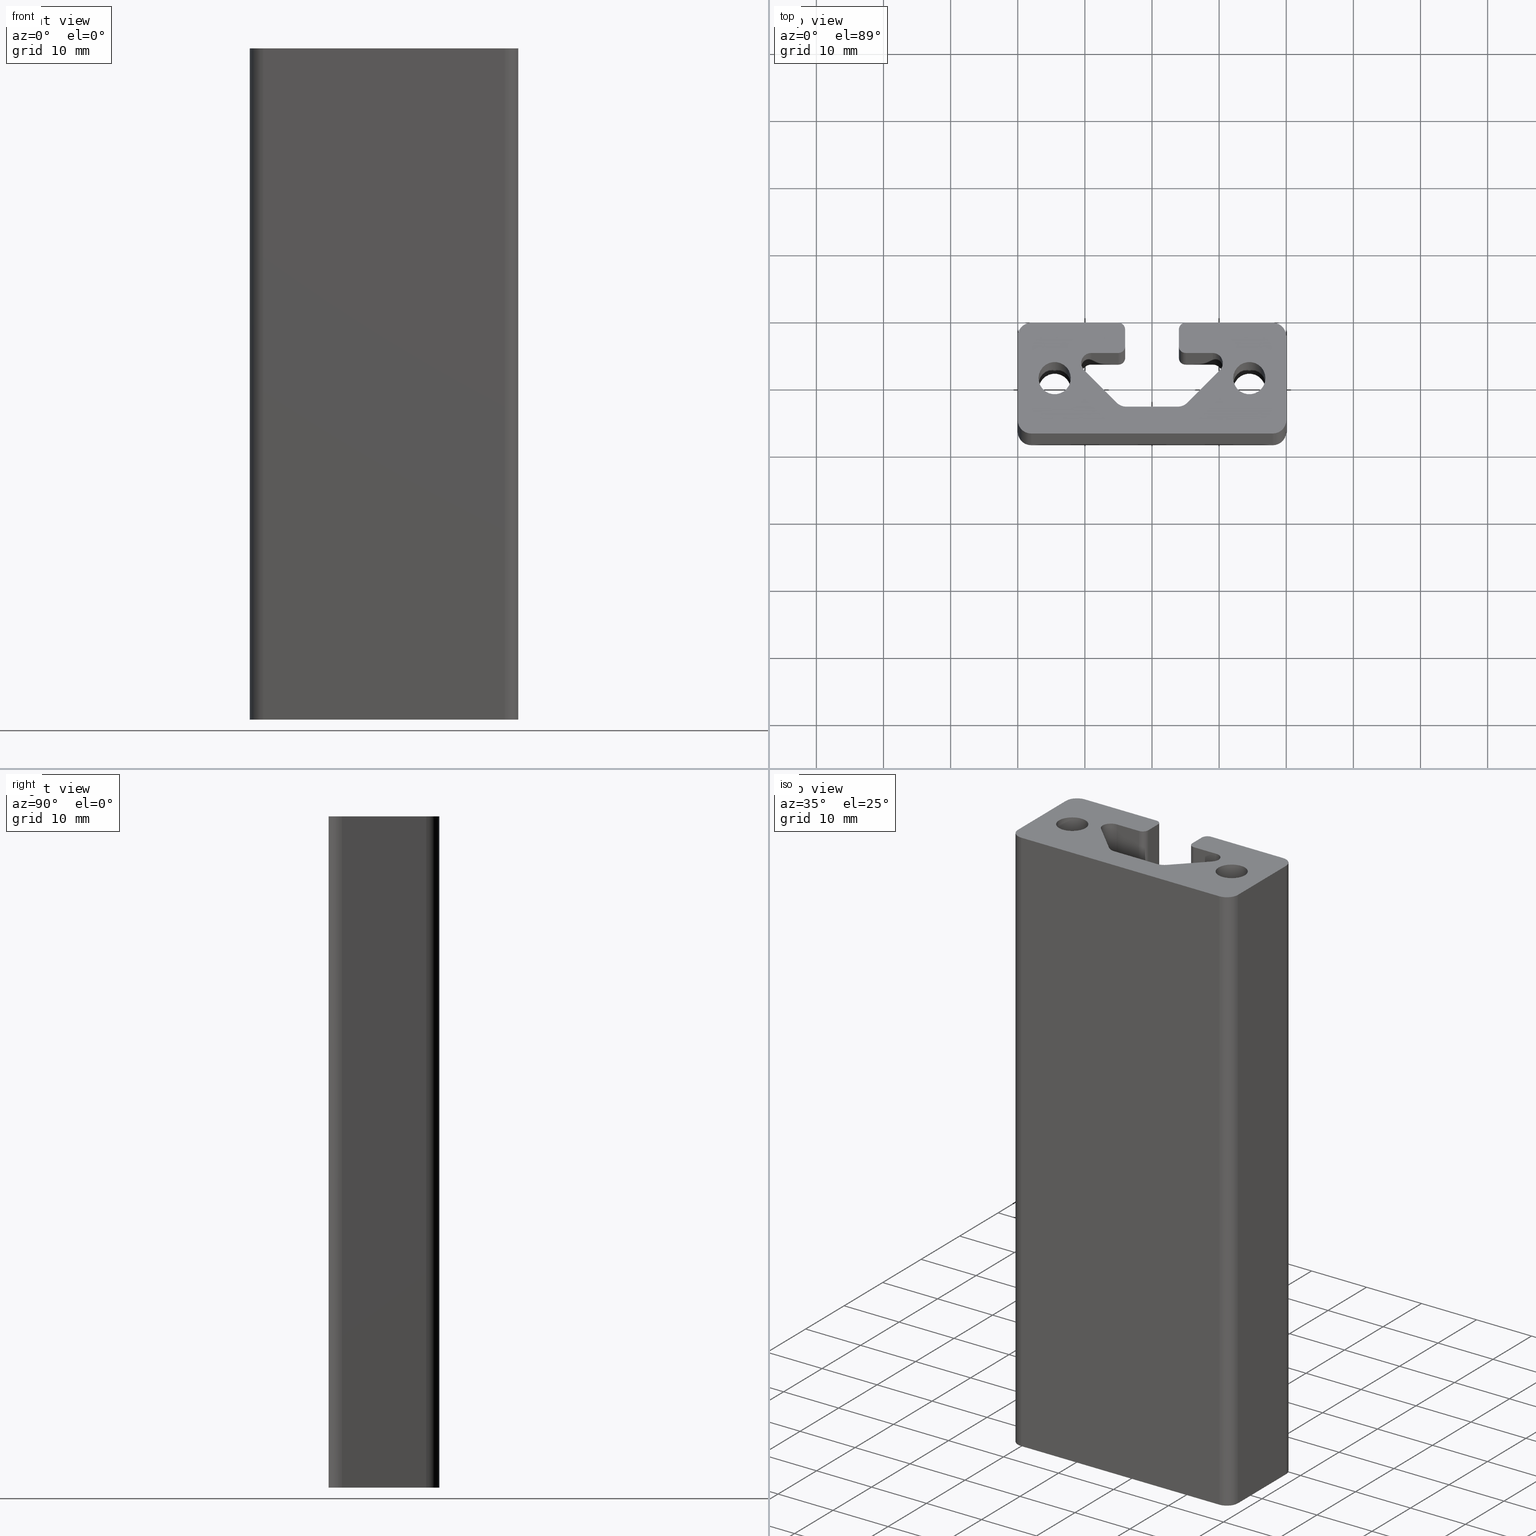
[diagram: canonical four-view strip — front | top / right | iso, engineering-drawing reading convention]
A machine part, canonical four-view strip (front | top / right | iso — engineering-drawing reading convention). The complete STEP part file that produces these views, byte-faithful:
ISO-10303-21;
HEADER;
/* Generated by software containing ST-Developer
 * from STEP Tools, Inc. (www.steptools.com) 
 */

FILE_DESCRIPTION(
/* description */ (''),
/* implementation_level */ '2;1');

FILE_NAME(
/* name */ 
'Q:\\Catalogo\\1_Profili Dierre\\Per Download Web\\Serie 40\\BPRDD0000
087.stp',
/* time_stamp */ '2017-07-12T11:26:34+02:00',
/* author */ ('fzagni'),
/* organization */ (''),
/* preprocessor_version */ 'ST-DEVELOPER v16.1',
/* originating_system */ 'Autodesk Inventor 2016',
/* authorisation */ '');

FILE_SCHEMA (('AUTOMOTIVE_DESIGN { 1 0 10303 214 3 1 1 }'));
ENDSEC;

DATA;
#10=MECHANICAL_DESIGN_GEOMETRIC_PRESENTATION_REPRESENTATION('',(#13),#923);
#11=SHAPE_REPRESENTATION_RELATIONSHIP('SRR','None',#932,#12);
#12=ADVANCED_BREP_SHAPE_REPRESENTATION('',(#14),#922);
#13=STYLED_ITEM('',(#941),#14);
#14=MANIFOLD_SOLID_BREP('Solido1',#543);
#15=FACE_BOUND('',#104,.T.);
#16=FACE_BOUND('',#106,.T.);
#17=FACE_BOUND('',#120,.T.);
#18=FACE_BOUND('',#121,.T.);
#19=FACE_BOUND('',#123,.T.);
#20=FACE_BOUND('',#124,.T.);
#21=CIRCLE('',#547,1.000000004051);
#22=CIRCLE('',#548,1.000000004051);
#23=CIRCLE('',#551,1.0000000020255);
#24=CIRCLE('',#552,1.0000000020255);
#25=CIRCLE('',#555,1.50000072214692);
#26=CIRCLE('',#556,1.50000072214692);
#27=CIRCLE('',#559,2.0000031924015);
#28=CIRCLE('',#560,2.0000031924015);
#29=CIRCLE('',#563,2.0000031924015);
#30=CIRCLE('',#564,2.0000031924015);
#31=CIRCLE('',#567,1.50000072214692);
#32=CIRCLE('',#568,1.50000072214692);
#33=CIRCLE('',#570,2.4);
#34=CIRCLE('',#571,2.4);
#35=CIRCLE('',#573,2.4);
#36=CIRCLE('',#574,2.4);
#37=CIRCLE('',#577,1.000000004051);
#38=CIRCLE('',#578,1.000000004051);
#39=CIRCLE('',#581,1.0000000020255);
#40=CIRCLE('',#582,1.0000000020255);
#41=CIRCLE('',#585,2.00000000000006);
#42=CIRCLE('',#586,2.00000000000006);
#43=CIRCLE('',#589,2.);
#44=CIRCLE('',#590,2.);
#45=CIRCLE('',#593,2.00000000000001);
#46=CIRCLE('',#594,2.00000000000001);
#47=CIRCLE('',#597,1.99999999999992);
#48=CIRCLE('',#598,1.99999999999992);
#49=CYLINDRICAL_SURFACE('',#546,1.000000004051);
#50=CYLINDRICAL_SURFACE('',#550,1.0000000020255);
#51=CYLINDRICAL_SURFACE('',#554,1.50000072214692);
#52=CYLINDRICAL_SURFACE('',#558,2.0000031924015);
#53=CYLINDRICAL_SURFACE('',#562,2.0000031924015);
#54=CYLINDRICAL_SURFACE('',#566,1.50000072214692);
#55=CYLINDRICAL_SURFACE('',#569,2.4);
#56=CYLINDRICAL_SURFACE('',#572,2.4);
#57=CYLINDRICAL_SURFACE('',#576,1.000000004051);
#58=CYLINDRICAL_SURFACE('',#580,1.0000000020255);
#59=CYLINDRICAL_SURFACE('',#584,2.00000000000006);
#60=CYLINDRICAL_SURFACE('',#588,2.);
#61=CYLINDRICAL_SURFACE('',#592,2.00000000000001);
#62=CYLINDRICAL_SURFACE('',#596,1.99999999999992);
#63=FACE_OUTER_BOUND('',#91,.T.);
#64=FACE_OUTER_BOUND('',#92,.T.);
#65=FACE_OUTER_BOUND('',#93,.T.);
#66=FACE_OUTER_BOUND('',#94,.T.);
#67=FACE_OUTER_BOUND('',#95,.T.);
#68=FACE_OUTER_BOUND('',#96,.T.);
#69=FACE_OUTER_BOUND('',#97,.T.);
#70=FACE_OUTER_BOUND('',#98,.T.);
#71=FACE_OUTER_BOUND('',#99,.T.);
#72=FACE_OUTER_BOUND('',#100,.T.);
#73=FACE_OUTER_BOUND('',#101,.T.);
#74=FACE_OUTER_BOUND('',#102,.T.);
#75=FACE_OUTER_BOUND('',#103,.T.);
#76=FACE_OUTER_BOUND('',#105,.T.);
#77=FACE_OUTER_BOUND('',#107,.T.);
#78=FACE_OUTER_BOUND('',#108,.T.);
#79=FACE_OUTER_BOUND('',#109,.T.);
#80=FACE_OUTER_BOUND('',#110,.T.);
#81=FACE_OUTER_BOUND('',#111,.T.);
#82=FACE_OUTER_BOUND('',#112,.T.);
#83=FACE_OUTER_BOUND('',#113,.T.);
#84=FACE_OUTER_BOUND('',#114,.T.);
#85=FACE_OUTER_BOUND('',#115,.T.);
#86=FACE_OUTER_BOUND('',#116,.T.);
#87=FACE_OUTER_BOUND('',#117,.T.);
#88=FACE_OUTER_BOUND('',#118,.T.);
#89=FACE_OUTER_BOUND('',#119,.T.);
#90=FACE_OUTER_BOUND('',#122,.T.);
#91=EDGE_LOOP('',(#349,#350,#351,#352));
#92=EDGE_LOOP('',(#353,#354,#355,#356));
#93=EDGE_LOOP('',(#357,#358,#359,#360));
#94=EDGE_LOOP('',(#361,#362,#363,#364));
#95=EDGE_LOOP('',(#365,#366,#367,#368));
#96=EDGE_LOOP('',(#369,#370,#371,#372));
#97=EDGE_LOOP('',(#373,#374,#375,#376));
#98=EDGE_LOOP('',(#377,#378,#379,#380));
#99=EDGE_LOOP('',(#381,#382,#383,#384));
#100=EDGE_LOOP('',(#385,#386,#387,#388));
#101=EDGE_LOOP('',(#389,#390,#391,#392));
#102=EDGE_LOOP('',(#393,#394,#395,#396));
#103=EDGE_LOOP('',(#397));
#104=EDGE_LOOP('',(#398));
#105=EDGE_LOOP('',(#399));
#106=EDGE_LOOP('',(#400));
#107=EDGE_LOOP('',(#401,#402,#403,#404));
#108=EDGE_LOOP('',(#405,#406,#407,#408));
#109=EDGE_LOOP('',(#409,#410,#411,#412));
#110=EDGE_LOOP('',(#413,#414,#415,#416));
#111=EDGE_LOOP('',(#417,#418,#419,#420));
#112=EDGE_LOOP('',(#421,#422,#423,#424));
#113=EDGE_LOOP('',(#425,#426,#427,#428));
#114=EDGE_LOOP('',(#429,#430,#431,#432));
#115=EDGE_LOOP('',(#433,#434,#435,#436));
#116=EDGE_LOOP('',(#437,#438,#439,#440));
#117=EDGE_LOOP('',(#441,#442,#443,#444));
#118=EDGE_LOOP('',(#445,#446,#447,#448));
#119=EDGE_LOOP('',(#449,#450,#451,#452,#453,#454,#455,#456,#457,#458,#459,
#460,#461,#462,#463,#464,#465,#466,#467,#468,#469,#470,#471,#472));
#120=EDGE_LOOP('',(#473));
#121=EDGE_LOOP('',(#474));
#122=EDGE_LOOP('',(#475,#476,#477,#478,#479,#480,#481,#482,#483,#484,#485,
#486,#487,#488,#489,#490,#491,#492,#493,#494,#495,#496,#497,#498));
#123=EDGE_LOOP('',(#499));
#124=EDGE_LOOP('',(#500));
#125=LINE('',#767,#173);
#126=LINE('',#769,#174);
#127=LINE('',#771,#175);
#128=LINE('',#772,#176);
#129=LINE('',#777,#177);
#130=LINE('',#781,#178);
#131=LINE('',#783,#179);
#132=LINE('',#784,#180);
#133=LINE('',#789,#181);
#134=LINE('',#793,#182);
#135=LINE('',#795,#183);
#136=LINE('',#796,#184);
#137=LINE('',#801,#185);
#138=LINE('',#805,#186);
#139=LINE('',#807,#187);
#140=LINE('',#808,#188);
#141=LINE('',#813,#189);
#142=LINE('',#817,#190);
#143=LINE('',#819,#191);
#144=LINE('',#820,#192);
#145=LINE('',#825,#193);
#146=LINE('',#829,#194);
#147=LINE('',#831,#195);
#148=LINE('',#832,#196);
#149=LINE('',#837,#197);
#150=LINE('',#851,#198);
#151=LINE('',#853,#199);
#152=LINE('',#854,#200);
#153=LINE('',#859,#201);
#154=LINE('',#863,#202);
#155=LINE('',#865,#203);
#156=LINE('',#866,#204);
#157=LINE('',#871,#205);
#158=LINE('',#875,#206);
#159=LINE('',#877,#207);
#160=LINE('',#878,#208);
#161=LINE('',#883,#209);
#162=LINE('',#887,#210);
#163=LINE('',#889,#211);
#164=LINE('',#890,#212);
#165=LINE('',#895,#213);
#166=LINE('',#899,#214);
#167=LINE('',#901,#215);
#168=LINE('',#902,#216);
#169=LINE('',#907,#217);
#170=LINE('',#911,#218);
#171=LINE('',#913,#219);
#172=LINE('',#914,#220);
#173=VECTOR('',#605,12.9999999956374);
#174=VECTOR('',#606,100.);
#175=VECTOR('',#607,12.9999999956374);
#176=VECTOR('',#608,100.);
#177=VECTOR('',#613,100.);
#178=VECTOR('',#618,2.499999995949);
#179=VECTOR('',#619,100.);
#180=VECTOR('',#620,2.499999995949);
#181=VECTOR('',#625,100.);
#182=VECTOR('',#630,4.05025491302354);
#183=VECTOR('',#631,100.);
#184=VECTOR('',#632,4.05025491302354);
#185=VECTOR('',#637,100.);
#186=VECTOR('',#642,6.86395720631049);
#187=VECTOR('',#643,100.);
#188=VECTOR('',#644,6.86395720631049);
#189=VECTOR('',#649,100.);
#190=VECTOR('',#654,7.68629110583554);
#191=VECTOR('',#655,100.);
#192=VECTOR('',#656,7.68629110583554);
#193=VECTOR('',#661,100.);
#194=VECTOR('',#666,6.86395796492603);
#195=VECTOR('',#667,100.);
#196=VECTOR('',#668,6.86395796492603);
#197=VECTOR('',#673,100.);
#198=VECTOR('',#690,4.05024790897246);
#199=VECTOR('',#691,100.);
#200=VECTOR('',#692,4.05024790897246);
#201=VECTOR('',#697,100.);
#202=VECTOR('',#702,2.499999995949);
#203=VECTOR('',#703,100.);
#204=VECTOR('',#704,2.499999995949);
#205=VECTOR('',#709,100.);
#206=VECTOR('',#714,12.999999995949);
#207=VECTOR('',#715,100.);
#208=VECTOR('',#716,12.999999995949);
#209=VECTOR('',#721,100.);
#210=VECTOR('',#726,12.5000000000004);
#211=VECTOR('',#727,100.);
#212=VECTOR('',#728,12.5000000000004);
#213=VECTOR('',#733,100.);
#214=VECTOR('',#738,36.);
#215=VECTOR('',#739,100.);
#216=VECTOR('',#740,36.);
#217=VECTOR('',#745,100.);
#218=VECTOR('',#750,12.5000000000004);
#219=VECTOR('',#751,100.);
#220=VECTOR('',#752,12.5000000000004);
#221=VERTEX_POINT('',#765);
#222=VERTEX_POINT('',#766);
#223=VERTEX_POINT('',#768);
#224=VERTEX_POINT('',#770);
#225=VERTEX_POINT('',#774);
#226=VERTEX_POINT('',#776);
#227=VERTEX_POINT('',#780);
#228=VERTEX_POINT('',#782);
#229=VERTEX_POINT('',#786);
#230=VERTEX_POINT('',#788);
#231=VERTEX_POINT('',#792);
#232=VERTEX_POINT('',#794);
#233=VERTEX_POINT('',#798);
#234=VERTEX_POINT('',#800);
#235=VERTEX_POINT('',#804);
#236=VERTEX_POINT('',#806);
#237=VERTEX_POINT('',#810);
#238=VERTEX_POINT('',#812);
#239=VERTEX_POINT('',#816);
#240=VERTEX_POINT('',#818);
#241=VERTEX_POINT('',#822);
#242=VERTEX_POINT('',#824);
#243=VERTEX_POINT('',#828);
#244=VERTEX_POINT('',#830);
#245=VERTEX_POINT('',#834);
#246=VERTEX_POINT('',#836);
#247=VERTEX_POINT('',#840);
#248=VERTEX_POINT('',#842);
#249=VERTEX_POINT('',#845);
#250=VERTEX_POINT('',#847);
#251=VERTEX_POINT('',#850);
#252=VERTEX_POINT('',#852);
#253=VERTEX_POINT('',#856);
#254=VERTEX_POINT('',#858);
#255=VERTEX_POINT('',#862);
#256=VERTEX_POINT('',#864);
#257=VERTEX_POINT('',#868);
#258=VERTEX_POINT('',#870);
#259=VERTEX_POINT('',#874);
#260=VERTEX_POINT('',#876);
#261=VERTEX_POINT('',#880);
#262=VERTEX_POINT('',#882);
#263=VERTEX_POINT('',#886);
#264=VERTEX_POINT('',#888);
#265=VERTEX_POINT('',#892);
#266=VERTEX_POINT('',#894);
#267=VERTEX_POINT('',#898);
#268=VERTEX_POINT('',#900);
#269=VERTEX_POINT('',#904);
#270=VERTEX_POINT('',#906);
#271=VERTEX_POINT('',#910);
#272=VERTEX_POINT('',#912);
#273=EDGE_CURVE('',#221,#222,#125,.T.);
#274=EDGE_CURVE('',#223,#222,#126,.T.);
#275=EDGE_CURVE('',#224,#223,#127,.T.);
#276=EDGE_CURVE('',#224,#221,#128,.T.);
#277=EDGE_CURVE('',#222,#225,#21,.T.);
#278=EDGE_CURVE('',#226,#225,#129,.T.);
#279=EDGE_CURVE('',#223,#226,#22,.T.);
#280=EDGE_CURVE('',#225,#227,#130,.T.);
#281=EDGE_CURVE('',#228,#227,#131,.T.);
#282=EDGE_CURVE('',#226,#228,#132,.T.);
#283=EDGE_CURVE('',#227,#229,#23,.T.);
#284=EDGE_CURVE('',#230,#229,#133,.T.);
#285=EDGE_CURVE('',#228,#230,#24,.T.);
#286=EDGE_CURVE('',#229,#231,#134,.T.);
#287=EDGE_CURVE('',#232,#231,#135,.T.);
#288=EDGE_CURVE('',#230,#232,#136,.T.);
#289=EDGE_CURVE('',#231,#233,#25,.T.);
#290=EDGE_CURVE('',#234,#233,#137,.T.);
#291=EDGE_CURVE('',#232,#234,#26,.T.);
#292=EDGE_CURVE('',#233,#235,#138,.T.);
#293=EDGE_CURVE('',#236,#235,#139,.T.);
#294=EDGE_CURVE('',#234,#236,#140,.T.);
#295=EDGE_CURVE('',#235,#237,#27,.T.);
#296=EDGE_CURVE('',#238,#237,#141,.T.);
#297=EDGE_CURVE('',#236,#238,#28,.T.);
#298=EDGE_CURVE('',#237,#239,#142,.T.);
#299=EDGE_CURVE('',#240,#239,#143,.T.);
#300=EDGE_CURVE('',#238,#240,#144,.T.);
#301=EDGE_CURVE('',#239,#241,#29,.T.);
#302=EDGE_CURVE('',#242,#241,#145,.T.);
#303=EDGE_CURVE('',#240,#242,#30,.T.);
#304=EDGE_CURVE('',#241,#243,#146,.T.);
#305=EDGE_CURVE('',#244,#243,#147,.T.);
#306=EDGE_CURVE('',#242,#244,#148,.T.);
#307=EDGE_CURVE('',#243,#245,#31,.T.);
#308=EDGE_CURVE('',#246,#245,#149,.T.);
#309=EDGE_CURVE('',#244,#246,#32,.T.);
#310=EDGE_CURVE('',#247,#247,#33,.T.);
#311=EDGE_CURVE('',#248,#248,#34,.T.);
#312=EDGE_CURVE('',#249,#249,#35,.T.);
#313=EDGE_CURVE('',#250,#250,#36,.T.);
#314=EDGE_CURVE('',#245,#251,#150,.T.);
#315=EDGE_CURVE('',#252,#251,#151,.T.);
#316=EDGE_CURVE('',#246,#252,#152,.T.);
#317=EDGE_CURVE('',#251,#253,#37,.T.);
#318=EDGE_CURVE('',#254,#253,#153,.T.);
#319=EDGE_CURVE('',#252,#254,#38,.T.);
#320=EDGE_CURVE('',#253,#255,#154,.T.);
#321=EDGE_CURVE('',#256,#255,#155,.T.);
#322=EDGE_CURVE('',#254,#256,#156,.T.);
#323=EDGE_CURVE('',#255,#257,#39,.T.);
#324=EDGE_CURVE('',#258,#257,#157,.T.);
#325=EDGE_CURVE('',#256,#258,#40,.T.);
#326=EDGE_CURVE('',#257,#259,#158,.T.);
#327=EDGE_CURVE('',#260,#259,#159,.T.);
#328=EDGE_CURVE('',#258,#260,#160,.T.);
#329=EDGE_CURVE('',#259,#261,#41,.T.);
#330=EDGE_CURVE('',#262,#261,#161,.T.);
#331=EDGE_CURVE('',#260,#262,#42,.T.);
#332=EDGE_CURVE('',#261,#263,#162,.T.);
#333=EDGE_CURVE('',#264,#263,#163,.T.);
#334=EDGE_CURVE('',#262,#264,#164,.T.);
#335=EDGE_CURVE('',#263,#265,#43,.T.);
#336=EDGE_CURVE('',#266,#265,#165,.T.);
#337=EDGE_CURVE('',#264,#266,#44,.T.);
#338=EDGE_CURVE('',#265,#267,#166,.T.);
#339=EDGE_CURVE('',#268,#267,#167,.T.);
#340=EDGE_CURVE('',#266,#268,#168,.T.);
#341=EDGE_CURVE('',#267,#269,#45,.T.);
#342=EDGE_CURVE('',#270,#269,#169,.T.);
#343=EDGE_CURVE('',#268,#270,#46,.T.);
#344=EDGE_CURVE('',#269,#271,#170,.T.);
#345=EDGE_CURVE('',#272,#271,#171,.T.);
#346=EDGE_CURVE('',#270,#272,#172,.T.);
#347=EDGE_CURVE('',#271,#221,#47,.T.);
#348=EDGE_CURVE('',#272,#224,#48,.T.);
#349=ORIENTED_EDGE('',*,*,#273,.T.);
#350=ORIENTED_EDGE('',*,*,#274,.F.);
#351=ORIENTED_EDGE('',*,*,#275,.F.);
#352=ORIENTED_EDGE('',*,*,#276,.T.);
#353=ORIENTED_EDGE('',*,*,#277,.T.);
#354=ORIENTED_EDGE('',*,*,#278,.F.);
#355=ORIENTED_EDGE('',*,*,#279,.F.);
#356=ORIENTED_EDGE('',*,*,#274,.T.);
#357=ORIENTED_EDGE('',*,*,#280,.T.);
#358=ORIENTED_EDGE('',*,*,#281,.F.);
#359=ORIENTED_EDGE('',*,*,#282,.F.);
#360=ORIENTED_EDGE('',*,*,#278,.T.);
#361=ORIENTED_EDGE('',*,*,#283,.T.);
#362=ORIENTED_EDGE('',*,*,#284,.F.);
#363=ORIENTED_EDGE('',*,*,#285,.F.);
#364=ORIENTED_EDGE('',*,*,#281,.T.);
#365=ORIENTED_EDGE('',*,*,#286,.T.);
#366=ORIENTED_EDGE('',*,*,#287,.F.);
#367=ORIENTED_EDGE('',*,*,#288,.F.);
#368=ORIENTED_EDGE('',*,*,#284,.T.);
#369=ORIENTED_EDGE('',*,*,#289,.T.);
#370=ORIENTED_EDGE('',*,*,#290,.F.);
#371=ORIENTED_EDGE('',*,*,#291,.F.);
#372=ORIENTED_EDGE('',*,*,#287,.T.);
#373=ORIENTED_EDGE('',*,*,#292,.T.);
#374=ORIENTED_EDGE('',*,*,#293,.F.);
#375=ORIENTED_EDGE('',*,*,#294,.F.);
#376=ORIENTED_EDGE('',*,*,#290,.T.);
#377=ORIENTED_EDGE('',*,*,#295,.T.);
#378=ORIENTED_EDGE('',*,*,#296,.F.);
#379=ORIENTED_EDGE('',*,*,#297,.F.);
#380=ORIENTED_EDGE('',*,*,#293,.T.);
#381=ORIENTED_EDGE('',*,*,#298,.T.);
#382=ORIENTED_EDGE('',*,*,#299,.F.);
#383=ORIENTED_EDGE('',*,*,#300,.F.);
#384=ORIENTED_EDGE('',*,*,#296,.T.);
#385=ORIENTED_EDGE('',*,*,#301,.T.);
#386=ORIENTED_EDGE('',*,*,#302,.F.);
#387=ORIENTED_EDGE('',*,*,#303,.F.);
#388=ORIENTED_EDGE('',*,*,#299,.T.);
#389=ORIENTED_EDGE('',*,*,#304,.T.);
#390=ORIENTED_EDGE('',*,*,#305,.F.);
#391=ORIENTED_EDGE('',*,*,#306,.F.);
#392=ORIENTED_EDGE('',*,*,#302,.T.);
#393=ORIENTED_EDGE('',*,*,#307,.T.);
#394=ORIENTED_EDGE('',*,*,#308,.F.);
#395=ORIENTED_EDGE('',*,*,#309,.F.);
#396=ORIENTED_EDGE('',*,*,#305,.T.);
#397=ORIENTED_EDGE('',*,*,#310,.T.);
#398=ORIENTED_EDGE('',*,*,#311,.F.);
#399=ORIENTED_EDGE('',*,*,#312,.T.);
#400=ORIENTED_EDGE('',*,*,#313,.F.);
#401=ORIENTED_EDGE('',*,*,#314,.T.);
#402=ORIENTED_EDGE('',*,*,#315,.F.);
#403=ORIENTED_EDGE('',*,*,#316,.F.);
#404=ORIENTED_EDGE('',*,*,#308,.T.);
#405=ORIENTED_EDGE('',*,*,#317,.T.);
#406=ORIENTED_EDGE('',*,*,#318,.F.);
#407=ORIENTED_EDGE('',*,*,#319,.F.);
#408=ORIENTED_EDGE('',*,*,#315,.T.);
#409=ORIENTED_EDGE('',*,*,#320,.T.);
#410=ORIENTED_EDGE('',*,*,#321,.F.);
#411=ORIENTED_EDGE('',*,*,#322,.F.);
#412=ORIENTED_EDGE('',*,*,#318,.T.);
#413=ORIENTED_EDGE('',*,*,#323,.T.);
#414=ORIENTED_EDGE('',*,*,#324,.F.);
#415=ORIENTED_EDGE('',*,*,#325,.F.);
#416=ORIENTED_EDGE('',*,*,#321,.T.);
#417=ORIENTED_EDGE('',*,*,#326,.T.);
#418=ORIENTED_EDGE('',*,*,#327,.F.);
#419=ORIENTED_EDGE('',*,*,#328,.F.);
#420=ORIENTED_EDGE('',*,*,#324,.T.);
#421=ORIENTED_EDGE('',*,*,#329,.T.);
#422=ORIENTED_EDGE('',*,*,#330,.F.);
#423=ORIENTED_EDGE('',*,*,#331,.F.);
#424=ORIENTED_EDGE('',*,*,#327,.T.);
#425=ORIENTED_EDGE('',*,*,#332,.T.);
#426=ORIENTED_EDGE('',*,*,#333,.F.);
#427=ORIENTED_EDGE('',*,*,#334,.F.);
#428=ORIENTED_EDGE('',*,*,#330,.T.);
#429=ORIENTED_EDGE('',*,*,#335,.T.);
#430=ORIENTED_EDGE('',*,*,#336,.F.);
#431=ORIENTED_EDGE('',*,*,#337,.F.);
#432=ORIENTED_EDGE('',*,*,#333,.T.);
#433=ORIENTED_EDGE('',*,*,#338,.T.);
#434=ORIENTED_EDGE('',*,*,#339,.F.);
#435=ORIENTED_EDGE('',*,*,#340,.F.);
#436=ORIENTED_EDGE('',*,*,#336,.T.);
#437=ORIENTED_EDGE('',*,*,#341,.T.);
#438=ORIENTED_EDGE('',*,*,#342,.F.);
#439=ORIENTED_EDGE('',*,*,#343,.F.);
#440=ORIENTED_EDGE('',*,*,#339,.T.);
#441=ORIENTED_EDGE('',*,*,#344,.T.);
#442=ORIENTED_EDGE('',*,*,#345,.F.);
#443=ORIENTED_EDGE('',*,*,#346,.F.);
#444=ORIENTED_EDGE('',*,*,#342,.T.);
#445=ORIENTED_EDGE('',*,*,#347,.T.);
#446=ORIENTED_EDGE('',*,*,#276,.F.);
#447=ORIENTED_EDGE('',*,*,#348,.F.);
#448=ORIENTED_EDGE('',*,*,#345,.T.);
#449=ORIENTED_EDGE('',*,*,#314,.F.);
#450=ORIENTED_EDGE('',*,*,#307,.F.);
#451=ORIENTED_EDGE('',*,*,#304,.F.);
#452=ORIENTED_EDGE('',*,*,#301,.F.);
#453=ORIENTED_EDGE('',*,*,#298,.F.);
#454=ORIENTED_EDGE('',*,*,#295,.F.);
#455=ORIENTED_EDGE('',*,*,#292,.F.);
#456=ORIENTED_EDGE('',*,*,#289,.F.);
#457=ORIENTED_EDGE('',*,*,#286,.F.);
#458=ORIENTED_EDGE('',*,*,#283,.F.);
#459=ORIENTED_EDGE('',*,*,#280,.F.);
#460=ORIENTED_EDGE('',*,*,#277,.F.);
#461=ORIENTED_EDGE('',*,*,#273,.F.);
#462=ORIENTED_EDGE('',*,*,#347,.F.);
#463=ORIENTED_EDGE('',*,*,#344,.F.);
#464=ORIENTED_EDGE('',*,*,#341,.F.);
#465=ORIENTED_EDGE('',*,*,#338,.F.);
#466=ORIENTED_EDGE('',*,*,#335,.F.);
#467=ORIENTED_EDGE('',*,*,#332,.F.);
#468=ORIENTED_EDGE('',*,*,#329,.F.);
#469=ORIENTED_EDGE('',*,*,#326,.F.);
#470=ORIENTED_EDGE('',*,*,#323,.F.);
#471=ORIENTED_EDGE('',*,*,#320,.F.);
#472=ORIENTED_EDGE('',*,*,#317,.F.);
#473=ORIENTED_EDGE('',*,*,#312,.F.);
#474=ORIENTED_EDGE('',*,*,#310,.F.);
#475=ORIENTED_EDGE('',*,*,#316,.T.);
#476=ORIENTED_EDGE('',*,*,#319,.T.);
#477=ORIENTED_EDGE('',*,*,#322,.T.);
#478=ORIENTED_EDGE('',*,*,#325,.T.);
#479=ORIENTED_EDGE('',*,*,#328,.T.);
#480=ORIENTED_EDGE('',*,*,#331,.T.);
#481=ORIENTED_EDGE('',*,*,#334,.T.);
#482=ORIENTED_EDGE('',*,*,#337,.T.);
#483=ORIENTED_EDGE('',*,*,#340,.T.);
#484=ORIENTED_EDGE('',*,*,#343,.T.);
#485=ORIENTED_EDGE('',*,*,#346,.T.);
#486=ORIENTED_EDGE('',*,*,#348,.T.);
#487=ORIENTED_EDGE('',*,*,#275,.T.);
#488=ORIENTED_EDGE('',*,*,#279,.T.);
#489=ORIENTED_EDGE('',*,*,#282,.T.);
#490=ORIENTED_EDGE('',*,*,#285,.T.);
#491=ORIENTED_EDGE('',*,*,#288,.T.);
#492=ORIENTED_EDGE('',*,*,#291,.T.);
#493=ORIENTED_EDGE('',*,*,#294,.T.);
#494=ORIENTED_EDGE('',*,*,#297,.T.);
#495=ORIENTED_EDGE('',*,*,#300,.T.);
#496=ORIENTED_EDGE('',*,*,#303,.T.);
#497=ORIENTED_EDGE('',*,*,#306,.T.);
#498=ORIENTED_EDGE('',*,*,#309,.T.);
#499=ORIENTED_EDGE('',*,*,#313,.T.);
#500=ORIENTED_EDGE('',*,*,#311,.T.);
#501=PLANE('',#545);
#502=PLANE('',#549);
#503=PLANE('',#553);
#504=PLANE('',#557);
#505=PLANE('',#561);
#506=PLANE('',#565);
#507=PLANE('',#575);
#508=PLANE('',#579);
#509=PLANE('',#583);
#510=PLANE('',#587);
#511=PLANE('',#591);
#512=PLANE('',#595);
#513=PLANE('',#599);
#514=PLANE('',#600);
#515=ADVANCED_FACE('',(#63),#501,.T.);
#516=ADVANCED_FACE('',(#64),#49,.T.);
#517=ADVANCED_FACE('',(#65),#502,.T.);
#518=ADVANCED_FACE('',(#66),#50,.T.);
#519=ADVANCED_FACE('',(#67),#503,.T.);
#520=ADVANCED_FACE('',(#68),#51,.F.);
#521=ADVANCED_FACE('',(#69),#504,.T.);
#522=ADVANCED_FACE('',(#70),#52,.F.);
#523=ADVANCED_FACE('',(#71),#505,.T.);
#524=ADVANCED_FACE('',(#72),#53,.F.);
#525=ADVANCED_FACE('',(#73),#506,.T.);
#526=ADVANCED_FACE('',(#74),#54,.F.);
#527=ADVANCED_FACE('',(#75,#15),#55,.F.);
#528=ADVANCED_FACE('',(#76,#16),#56,.F.);
#529=ADVANCED_FACE('',(#77),#507,.T.);
#530=ADVANCED_FACE('',(#78),#57,.T.);
#531=ADVANCED_FACE('',(#79),#508,.T.);
#532=ADVANCED_FACE('',(#80),#58,.T.);
#533=ADVANCED_FACE('',(#81),#509,.T.);
#534=ADVANCED_FACE('',(#82),#59,.T.);
#535=ADVANCED_FACE('',(#83),#510,.T.);
#536=ADVANCED_FACE('',(#84),#60,.T.);
#537=ADVANCED_FACE('',(#85),#511,.T.);
#538=ADVANCED_FACE('',(#86),#61,.T.);
#539=ADVANCED_FACE('',(#87),#512,.T.);
#540=ADVANCED_FACE('',(#88),#62,.T.);
#541=ADVANCED_FACE('',(#89,#17,#18),#513,.T.);
#542=ADVANCED_FACE('',(#90,#19,#20),#514,.F.);
#543=CLOSED_SHELL('',(#515,#516,#517,#518,#519,#520,#521,#522,#523,#524,
#525,#526,#527,#528,#529,#530,#531,#532,#533,#534,#535,#536,#537,#538,#539,
#540,#541,#542));
#544=AXIS2_PLACEMENT_3D('placement',#763,#601,#602);
#545=AXIS2_PLACEMENT_3D('',#764,#603,#604);
#546=AXIS2_PLACEMENT_3D('',#773,#609,#610);
#547=AXIS2_PLACEMENT_3D('',#775,#611,#612);
#548=AXIS2_PLACEMENT_3D('',#778,#614,#615);
#549=AXIS2_PLACEMENT_3D('',#779,#616,#617);
#550=AXIS2_PLACEMENT_3D('',#785,#621,#622);
#551=AXIS2_PLACEMENT_3D('',#787,#623,#624);
#552=AXIS2_PLACEMENT_3D('',#790,#626,#627);
#553=AXIS2_PLACEMENT_3D('',#791,#628,#629);
#554=AXIS2_PLACEMENT_3D('',#797,#633,#634);
#555=AXIS2_PLACEMENT_3D('',#799,#635,#636);
#556=AXIS2_PLACEMENT_3D('',#802,#638,#639);
#557=AXIS2_PLACEMENT_3D('',#803,#640,#641);
#558=AXIS2_PLACEMENT_3D('',#809,#645,#646);
#559=AXIS2_PLACEMENT_3D('',#811,#647,#648);
#560=AXIS2_PLACEMENT_3D('',#814,#650,#651);
#561=AXIS2_PLACEMENT_3D('',#815,#652,#653);
#562=AXIS2_PLACEMENT_3D('',#821,#657,#658);
#563=AXIS2_PLACEMENT_3D('',#823,#659,#660);
#564=AXIS2_PLACEMENT_3D('',#826,#662,#663);
#565=AXIS2_PLACEMENT_3D('',#827,#664,#665);
#566=AXIS2_PLACEMENT_3D('',#833,#669,#670);
#567=AXIS2_PLACEMENT_3D('',#835,#671,#672);
#568=AXIS2_PLACEMENT_3D('',#838,#674,#675);
#569=AXIS2_PLACEMENT_3D('',#839,#676,#677);
#570=AXIS2_PLACEMENT_3D('',#841,#678,#679);
#571=AXIS2_PLACEMENT_3D('',#843,#680,#681);
#572=AXIS2_PLACEMENT_3D('',#844,#682,#683);
#573=AXIS2_PLACEMENT_3D('',#846,#684,#685);
#574=AXIS2_PLACEMENT_3D('',#848,#686,#687);
#575=AXIS2_PLACEMENT_3D('',#849,#688,#689);
#576=AXIS2_PLACEMENT_3D('',#855,#693,#694);
#577=AXIS2_PLACEMENT_3D('',#857,#695,#696);
#578=AXIS2_PLACEMENT_3D('',#860,#698,#699);
#579=AXIS2_PLACEMENT_3D('',#861,#700,#701);
#580=AXIS2_PLACEMENT_3D('',#867,#705,#706);
#581=AXIS2_PLACEMENT_3D('',#869,#707,#708);
#582=AXIS2_PLACEMENT_3D('',#872,#710,#711);
#583=AXIS2_PLACEMENT_3D('',#873,#712,#713);
#584=AXIS2_PLACEMENT_3D('',#879,#717,#718);
#585=AXIS2_PLACEMENT_3D('',#881,#719,#720);
#586=AXIS2_PLACEMENT_3D('',#884,#722,#723);
#587=AXIS2_PLACEMENT_3D('',#885,#724,#725);
#588=AXIS2_PLACEMENT_3D('',#891,#729,#730);
#589=AXIS2_PLACEMENT_3D('',#893,#731,#732);
#590=AXIS2_PLACEMENT_3D('',#896,#734,#735);
#591=AXIS2_PLACEMENT_3D('',#897,#736,#737);
#592=AXIS2_PLACEMENT_3D('',#903,#741,#742);
#593=AXIS2_PLACEMENT_3D('',#905,#743,#744);
#594=AXIS2_PLACEMENT_3D('',#908,#746,#747);
#595=AXIS2_PLACEMENT_3D('',#909,#748,#749);
#596=AXIS2_PLACEMENT_3D('',#915,#753,#754);
#597=AXIS2_PLACEMENT_3D('',#916,#755,#756);
#598=AXIS2_PLACEMENT_3D('',#917,#757,#758);
#599=AXIS2_PLACEMENT_3D('',#918,#759,#760);
#600=AXIS2_PLACEMENT_3D('',#919,#761,#762);
#601=DIRECTION('axis',(0.,0.,1.));
#602=DIRECTION('refdir',(1.,0.,0.));
#603=DIRECTION('center_axis',(-3.1161637383511E-10,1.,0.));
#604=DIRECTION('ref_axis',(0.,0.,1.));
#605=DIRECTION('',(1.,3.1161637383511E-10,0.));
#606=DIRECTION('',(0.,0.,1.));
#607=DIRECTION('',(1.,3.1161637383511E-10,0.));
#608=DIRECTION('',(0.,0.,1.));
#609=DIRECTION('center_axis',(0.,0.,1.));
#610=DIRECTION('ref_axis',(-1.,2.22044604025528E-15,0.));
#611=DIRECTION('center_axis',(0.,0.,-1.));
#612=DIRECTION('ref_axis',(-1.,2.22044604025528E-15,0.));
#613=DIRECTION('',(0.,0.,1.));
#614=DIRECTION('center_axis',(0.,0.,-1.));
#615=DIRECTION('ref_axis',(-1.,2.22044604025528E-15,0.));
#616=DIRECTION('center_axis',(1.,0.,0.));
#617=DIRECTION('ref_axis',(0.,0.,-1.));
#618=DIRECTION('',(0.,-1.,0.));
#619=DIRECTION('',(0.,0.,1.));
#620=DIRECTION('',(0.,-1.,0.));
#621=DIRECTION('center_axis',(0.,0.,1.));
#622=DIRECTION('ref_axis',(-2.02549976380768E-9,1.,0.));
#623=DIRECTION('center_axis',(0.,0.,-1.));
#624=DIRECTION('ref_axis',(-2.02549976380768E-9,1.,0.));
#625=DIRECTION('',(0.,0.,1.));
#626=DIRECTION('center_axis',(0.,0.,-1.));
#627=DIRECTION('ref_axis',(-2.02549976380768E-9,1.,0.));
#628=DIRECTION('center_axis',(0.,-1.,0.));
#629=DIRECTION('ref_axis',(0.,0.,-1.));
#630=DIRECTION('',(-1.,0.,0.));
#631=DIRECTION('',(0.,0.,1.));
#632=DIRECTION('',(-1.,0.,0.));
#633=DIRECTION('center_axis',(0.,0.,1.));
#634=DIRECTION('ref_axis',(0.,1.,0.));
#635=DIRECTION('center_axis',(0.,0.,1.));
#636=DIRECTION('ref_axis',(0.,1.,0.));
#637=DIRECTION('',(0.,0.,1.));
#638=DIRECTION('center_axis',(0.,0.,1.));
#639=DIRECTION('ref_axis',(0.,1.,0.));
#640=DIRECTION('center_axis',(0.707106854030809,0.707106708342279,0.));
#641=DIRECTION('ref_axis',(0.,0.,-1.));
#642=DIRECTION('',(0.707106708342279,-0.707106854030809,0.));
#643=DIRECTION('',(0.,0.,1.));
#644=DIRECTION('',(0.707106708342279,-0.707106854030809,0.));
#645=DIRECTION('center_axis',(0.,0.,1.));
#646=DIRECTION('ref_axis',(-0.70710685403081,-0.707106708342278,0.));
#647=DIRECTION('center_axis',(0.,0.,1.));
#648=DIRECTION('ref_axis',(-0.70710685403081,-0.707106708342278,0.));
#649=DIRECTION('',(0.,0.,1.));
#650=DIRECTION('center_axis',(0.,0.,1.));
#651=DIRECTION('ref_axis',(-0.70710685403081,-0.707106708342278,0.));
#652=DIRECTION('center_axis',(-2.8888393877829E-16,1.,0.));
#653=DIRECTION('ref_axis',(0.,0.,1.));
#654=DIRECTION('',(1.,2.8888393877829E-16,0.));
#655=DIRECTION('',(0.,0.,1.));
#656=DIRECTION('',(1.,2.8888393877829E-16,0.));
#657=DIRECTION('center_axis',(0.,0.,1.));
#658=DIRECTION('ref_axis',(0.,-1.,0.));
#659=DIRECTION('center_axis',(0.,0.,1.));
#660=DIRECTION('ref_axis',(0.,-1.,0.));
#661=DIRECTION('',(0.,0.,1.));
#662=DIRECTION('center_axis',(0.,0.,1.));
#663=DIRECTION('ref_axis',(0.,-1.,0.));
#664=DIRECTION('center_axis',(-0.707106781186548,0.707106781186547,0.));
#665=DIRECTION('ref_axis',(0.,0.,1.));
#666=DIRECTION('',(0.707106781186547,0.707106781186548,0.));
#667=DIRECTION('',(0.,0.,1.));
#668=DIRECTION('',(0.707106781186547,0.707106781186548,0.));
#669=DIRECTION('center_axis',(0.,0.,1.));
#670=DIRECTION('ref_axis',(0.707106781186547,-0.707106781186548,0.));
#671=DIRECTION('center_axis',(0.,0.,1.));
#672=DIRECTION('ref_axis',(0.707106781186547,-0.707106781186548,0.));
#673=DIRECTION('',(0.,0.,1.));
#674=DIRECTION('center_axis',(0.,0.,1.));
#675=DIRECTION('ref_axis',(0.707106781186547,-0.707106781186548,0.));
#676=DIRECTION('center_axis',(0.,0.,1.));
#677=DIRECTION('ref_axis',(-1.,0.,0.));
#678=DIRECTION('center_axis',(0.,0.,1.));
#679=DIRECTION('ref_axis',(-1.,0.,0.));
#680=DIRECTION('center_axis',(0.,0.,1.));
#681=DIRECTION('ref_axis',(-1.,0.,0.));
#682=DIRECTION('center_axis',(0.,0.,1.));
#683=DIRECTION('ref_axis',(-1.,0.,0.));
#684=DIRECTION('center_axis',(0.,0.,1.));
#685=DIRECTION('ref_axis',(-1.,0.,0.));
#686=DIRECTION('center_axis',(0.,0.,1.));
#687=DIRECTION('ref_axis',(-1.,0.,0.));
#688=DIRECTION('center_axis',(0.,-1.,0.));
#689=DIRECTION('ref_axis',(0.,0.,-1.));
#690=DIRECTION('',(-1.,0.,0.));
#691=DIRECTION('',(0.,0.,1.));
#692=DIRECTION('',(-1.,0.,0.));
#693=DIRECTION('center_axis',(0.,0.,1.));
#694=DIRECTION('ref_axis',(1.,0.,0.));
#695=DIRECTION('center_axis',(0.,0.,-1.));
#696=DIRECTION('ref_axis',(1.,0.,0.));
#697=DIRECTION('',(0.,0.,1.));
#698=DIRECTION('center_axis',(0.,0.,-1.));
#699=DIRECTION('ref_axis',(1.,0.,0.));
#700=DIRECTION('center_axis',(-1.,0.,0.));
#701=DIRECTION('ref_axis',(0.,0.,1.));
#702=DIRECTION('',(0.,1.,0.));
#703=DIRECTION('',(0.,0.,1.));
#704=DIRECTION('',(0.,1.,0.));
#705=DIRECTION('center_axis',(0.,0.,1.));
#706=DIRECTION('ref_axis',(-2.02549310246954E-9,-1.,0.));
#707=DIRECTION('center_axis',(0.,0.,-1.));
#708=DIRECTION('ref_axis',(-2.02549310246954E-9,-1.,0.));
#709=DIRECTION('',(0.,0.,1.));
#710=DIRECTION('center_axis',(0.,0.,-1.));
#711=DIRECTION('ref_axis',(-2.02549310246954E-9,-1.,0.));
#712=DIRECTION('center_axis',(-8.88178419976895E-15,1.,0.));
#713=DIRECTION('ref_axis',(0.,0.,1.));
#714=DIRECTION('',(1.,8.88178419976895E-15,0.));
#715=DIRECTION('',(0.,0.,1.));
#716=DIRECTION('',(1.,8.88178419976895E-15,0.));
#717=DIRECTION('center_axis',(0.,0.,1.));
#718=DIRECTION('ref_axis',(-1.,3.10862446895036E-14,0.));
#719=DIRECTION('center_axis',(0.,0.,-1.));
#720=DIRECTION('ref_axis',(-1.,3.10862446895036E-14,0.));
#721=DIRECTION('',(0.,0.,1.));
#722=DIRECTION('center_axis',(0.,0.,-1.));
#723=DIRECTION('ref_axis',(-1.,3.10862446895036E-14,0.));
#724=DIRECTION('center_axis',(0.999999999999971,-2.39999999251943E-7,0.));
#725=DIRECTION('ref_axis',(0.,0.,-1.));
#726=DIRECTION('',(-2.39999999251943E-7,-0.999999999999971,0.));
#727=DIRECTION('',(0.,0.,1.));
#728=DIRECTION('',(-2.39999999251943E-7,-0.999999999999971,0.));
#729=DIRECTION('center_axis',(0.,0.,1.));
#730=DIRECTION('ref_axis',(1.11022302462516E-15,1.,0.));
#731=DIRECTION('center_axis',(0.,0.,-1.));
#732=DIRECTION('ref_axis',(1.11022302462516E-15,1.,0.));
#733=DIRECTION('',(0.,0.,1.));
#734=DIRECTION('center_axis',(0.,0.,-1.));
#735=DIRECTION('ref_axis',(1.11022302462516E-15,1.,0.));
#736=DIRECTION('center_axis',(7.40148683083438E-16,-1.,0.));
#737=DIRECTION('ref_axis',(0.,0.,-1.));
#738=DIRECTION('',(-1.,-7.40148683083438E-16,0.));
#739=DIRECTION('',(0.,0.,1.));
#740=DIRECTION('',(-1.,-7.40148683083438E-16,0.));
#741=DIRECTION('center_axis',(0.,0.,1.));
#742=DIRECTION('ref_axis',(1.,-6.6613381477509E-15,0.));
#743=DIRECTION('center_axis',(0.,0.,-1.));
#744=DIRECTION('ref_axis',(1.,-6.6613381477509E-15,0.));
#745=DIRECTION('',(0.,0.,1.));
#746=DIRECTION('center_axis',(0.,0.,-1.));
#747=DIRECTION('ref_axis',(1.,-6.6613381477509E-15,0.));
#748=DIRECTION('center_axis',(-0.999999999999971,2.40000014350976E-7,0.));
#749=DIRECTION('ref_axis',(0.,0.,1.));
#750=DIRECTION('',(2.40000014350976E-7,0.999999999999971,0.));
#751=DIRECTION('',(0.,0.,1.));
#752=DIRECTION('',(2.40000014350976E-7,0.999999999999971,0.));
#753=DIRECTION('center_axis',(0.,0.,1.));
#754=DIRECTION('ref_axis',(4.44089209850083E-14,-1.,0.));
#755=DIRECTION('center_axis',(0.,0.,-1.));
#756=DIRECTION('ref_axis',(4.44089209850083E-14,-1.,0.));
#757=DIRECTION('center_axis',(0.,0.,-1.));
#758=DIRECTION('ref_axis',(4.44089209850083E-14,-1.,0.));
#759=DIRECTION('center_axis',(0.,0.,1.));
#760=DIRECTION('ref_axis',(1.,0.,0.));
#761=DIRECTION('center_axis',(0.,0.,1.));
#762=DIRECTION('ref_axis',(1.,0.,0.));
#763=CARTESIAN_POINT('',(0.,0.,0.));
#764=CARTESIAN_POINT('Origin',(-18.,8.24999999999994,0.));
#765=CARTESIAN_POINT('',(-18.,8.24999999999994,100.));
#766=CARTESIAN_POINT('',(-5.00000000436262,8.25000000405095,100.));
#767=CARTESIAN_POINT('',(-9.00000075128542,8.25000000280449,100.));
#768=CARTESIAN_POINT('',(-5.00000000436262,8.25000000405095,0.));
#769=CARTESIAN_POINT('',(-5.00000000436262,8.25000000405095,0.));
#770=CARTESIAN_POINT('',(-18.,8.24999999999994,0.));
#771=CARTESIAN_POINT('',(-9.00000075128542,8.25000000280449,0.));
#772=CARTESIAN_POINT('',(-18.,8.24999999999994,0.));
#773=CARTESIAN_POINT('Origin',(-5.000000004051,7.24999999999995,0.));
#774=CARTESIAN_POINT('',(-4.,7.24999999999995,100.));
#775=CARTESIAN_POINT('Origin',(-5.000000004051,7.24999999999995,100.));
#776=CARTESIAN_POINT('',(-4.,7.24999999999995,0.));
#777=CARTESIAN_POINT('',(-4.,7.24999999999995,0.));
#778=CARTESIAN_POINT('Origin',(-5.000000004051,7.24999999999995,0.));
#779=CARTESIAN_POINT('Origin',(-4.,7.24999999999995,0.));
#780=CARTESIAN_POINT('',(-4.,4.75000000405095,100.));
#781=CARTESIAN_POINT('',(-4.,3.62500000101269,100.));
#782=CARTESIAN_POINT('',(-4.,4.75000000405095,0.));
#783=CARTESIAN_POINT('',(-4.,4.75000000405095,0.));
#784=CARTESIAN_POINT('',(-4.,3.62500000101269,0.));
#785=CARTESIAN_POINT('Origin',(-5.0000000020255,4.75000000202544,0.));
#786=CARTESIAN_POINT('',(-5.,3.74999999999994,100.));
#787=CARTESIAN_POINT('Origin',(-5.0000000020255,4.75000000202544,100.));
#788=CARTESIAN_POINT('',(-5.,3.74999999999994,0.));
#789=CARTESIAN_POINT('',(-5.,3.74999999999994,0.));
#790=CARTESIAN_POINT('Origin',(-5.0000000020255,4.75000000202544,0.));
#791=CARTESIAN_POINT('Origin',(-5.,3.74999999999994,0.));
#792=CARTESIAN_POINT('',(-9.05025491302354,3.74999999999994,100.));
#793=CARTESIAN_POINT('',(-2.50000075,3.74999999999994,100.));
#794=CARTESIAN_POINT('',(-9.05025491302354,3.74999999999994,0.));
#795=CARTESIAN_POINT('',(-9.05025491302354,3.74999999999994,0.));
#796=CARTESIAN_POINT('',(-2.50000075,3.74999999999994,0.));
#797=CARTESIAN_POINT('Origin',(-9.05025491302354,2.24999927785303,0.));
#798=CARTESIAN_POINT('',(-10.1109157047048,1.18933870470467,100.));
#799=CARTESIAN_POINT('Origin',(-9.05025491302354,2.24999927785303,100.));
#800=CARTESIAN_POINT('',(-10.1109157047048,1.18933870470467,0.));
#801=CARTESIAN_POINT('',(-10.1109157047048,1.18933870470467,0.));
#802=CARTESIAN_POINT('Origin',(-9.05025491302354,2.24999927785303,0.));
#803=CARTESIAN_POINT('Origin',(-10.1109157047048,1.18933870470467,0.));
#804=CARTESIAN_POINT('',(-5.25736551834832,-3.66421248165163,100.));
#805=CARTESIAN_POINT('',(-7.28585299865857,-1.63572458340254,100.));
#806=CARTESIAN_POINT('',(-5.25736551834832,-3.66421248165163,0.));
#807=CARTESIAN_POINT('',(-5.25736551834832,-3.66421248165163,0.));
#808=CARTESIAN_POINT('',(-7.28585299865857,-1.63572458340254,0.));
#809=CARTESIAN_POINT('Origin',(-3.84314955291772,-2.24999680759856,0.));
#810=CARTESIAN_POINT('',(-3.84314955291772,-4.25000000000006,100.));
#811=CARTESIAN_POINT('Origin',(-3.84314955291772,-2.24999680759856,100.));
#812=CARTESIAN_POINT('',(-3.84314955291772,-4.25000000000006,0.));
#813=CARTESIAN_POINT('',(-3.84314955291772,-4.25000000000006,0.));
#814=CARTESIAN_POINT('Origin',(-3.84314955291772,-2.24999680759856,0.));
#815=CARTESIAN_POINT('Origin',(-3.84314955291772,-4.25000000000006,0.));
#816=CARTESIAN_POINT('',(3.84314155291782,-4.25000000000006,100.));
#817=CARTESIAN_POINT('',(-1.92157552645886,-4.25000000000006,100.));
#818=CARTESIAN_POINT('',(3.84314155291782,-4.25000000000006,0.));
#819=CARTESIAN_POINT('',(3.84314155291782,-4.25000000000006,0.));
#820=CARTESIAN_POINT('',(-1.92157552645886,-4.25000000000006,0.));
#821=CARTESIAN_POINT('Origin',(3.84314155291782,-2.24999680759856,0.));
#822=CARTESIAN_POINT('',(5.25735737265967,-3.6642126273404,100.));
#823=CARTESIAN_POINT('Origin',(3.84314155291782,-2.24999680759856,100.));
#824=CARTESIAN_POINT('',(5.25735737265967,-3.6642126273404,0.));
#825=CARTESIAN_POINT('',(5.25735737265967,-3.6642126273404,0.));
#826=CARTESIAN_POINT('Origin',(3.84314155291782,-2.24999680759856,0.));
#827=CARTESIAN_POINT('Origin',(5.25735737265967,-3.6642126273404,0.));
#828=CARTESIAN_POINT('',(10.1109085954383,1.18933859543822,100.));
#829=CARTESIAN_POINT('',(4.85907081183621,-4.06249918816386,100.));
#830=CARTESIAN_POINT('',(10.1109085954383,1.18933859543822,0.));
#831=CARTESIAN_POINT('',(10.1109085954383,1.18933859543822,0.));
#832=CARTESIAN_POINT('',(4.85907081183621,-4.06249918816386,0.));
#833=CARTESIAN_POINT('Origin',(9.05024791302347,2.24999927785302,0.));
#834=CARTESIAN_POINT('',(9.05024791302347,3.74999999999994,100.));
#835=CARTESIAN_POINT('Origin',(9.05024791302347,2.24999927785302,100.));
#836=CARTESIAN_POINT('',(9.05024791302347,3.74999999999994,0.));
#837=CARTESIAN_POINT('',(9.05024791302347,3.74999999999994,0.));
#838=CARTESIAN_POINT('Origin',(9.05024791302347,2.24999927785302,0.));
#839=CARTESIAN_POINT('Origin',(-14.500006,-5.32907051820075E-14,0.));
#840=CARTESIAN_POINT('',(-12.100006,-5.29967899502122E-14,100.));
#841=CARTESIAN_POINT('Origin',(-14.500006,-5.32907051820075E-14,100.));
#842=CARTESIAN_POINT('',(-12.100006,-5.29967899502122E-14,0.));
#843=CARTESIAN_POINT('Origin',(-14.500006,-5.32907051820075E-14,0.));
#844=CARTESIAN_POINT('Origin',(14.499999,-5.32907051820075E-14,0.));
#845=CARTESIAN_POINT('',(16.899999,-5.29967899502122E-14,100.));
#846=CARTESIAN_POINT('Origin',(14.499999,-5.32907051820075E-14,100.));
#847=CARTESIAN_POINT('',(16.899999,-5.29967899502122E-14,0.));
#848=CARTESIAN_POINT('Origin',(14.499999,-5.32907051820075E-14,0.));
#849=CARTESIAN_POINT('Origin',(9.05024791302347,3.74999999999994,0.));
#850=CARTESIAN_POINT('',(5.000000004051,3.74999999999994,100.));
#851=CARTESIAN_POINT('',(4.52512320651173,3.74999999999994,100.));
#852=CARTESIAN_POINT('',(5.000000004051,3.74999999999994,0.));
#853=CARTESIAN_POINT('',(5.000000004051,3.74999999999994,0.));
#854=CARTESIAN_POINT('',(4.52512320651173,3.74999999999994,0.));
#855=CARTESIAN_POINT('Origin',(5.000000004051,4.75000000405095,0.));
#856=CARTESIAN_POINT('',(4.,4.75000000405095,100.));
#857=CARTESIAN_POINT('Origin',(5.000000004051,4.75000000405095,100.));
#858=CARTESIAN_POINT('',(4.,4.75000000405095,0.));
#859=CARTESIAN_POINT('',(4.,4.75000000405095,0.));
#860=CARTESIAN_POINT('Origin',(5.000000004051,4.75000000405095,0.));
#861=CARTESIAN_POINT('Origin',(4.,4.75000000405095,0.));
#862=CARTESIAN_POINT('',(4.,7.24999999999995,100.));
#863=CARTESIAN_POINT('',(4.,2.37500000303819,100.));
#864=CARTESIAN_POINT('',(4.,7.24999999999995,0.));
#865=CARTESIAN_POINT('',(4.,7.24999999999995,0.));
#866=CARTESIAN_POINT('',(4.,2.37500000303819,0.));
#867=CARTESIAN_POINT('Origin',(5.0000000020255,7.24999999797444,0.));
#868=CARTESIAN_POINT('',(5.000000004051,8.24999999999994,100.));
#869=CARTESIAN_POINT('Origin',(5.0000000020255,7.24999999797444,100.));
#870=CARTESIAN_POINT('',(5.000000004051,8.24999999999994,0.));
#871=CARTESIAN_POINT('',(5.000000004051,8.24999999999994,0.));
#872=CARTESIAN_POINT('Origin',(5.0000000020255,7.24999999797444,0.));
#873=CARTESIAN_POINT('Origin',(5.000000004051,8.24999999999994,0.));
#874=CARTESIAN_POINT('',(18.,8.25000000000006,100.));
#875=CARTESIAN_POINT('',(2.49999925202546,8.24999999999992,100.));
#876=CARTESIAN_POINT('',(18.,8.25000000000006,0.));
#877=CARTESIAN_POINT('',(18.,8.25000000000006,0.));
#878=CARTESIAN_POINT('',(2.49999925202546,8.24999999999992,0.));
#879=CARTESIAN_POINT('Origin',(17.9999999999999,6.25000000000001,0.));
#880=CARTESIAN_POINT('',(20.,6.24999999999994,100.));
#881=CARTESIAN_POINT('Origin',(17.9999999999999,6.25000000000001,100.));
#882=CARTESIAN_POINT('',(20.,6.24999999999994,0.));
#883=CARTESIAN_POINT('',(20.,6.24999999999994,0.));
#884=CARTESIAN_POINT('Origin',(17.9999999999999,6.25000000000001,0.));
#885=CARTESIAN_POINT('Origin',(20.,6.24999999999994,0.));
#886=CARTESIAN_POINT('',(19.999997,-6.25000000000006,100.));
#887=CARTESIAN_POINT('',(19.9999992499994,3.1249976010127,100.));
#888=CARTESIAN_POINT('',(19.999997,-6.25000000000006,0.));
#889=CARTESIAN_POINT('',(19.999997,-6.25000000000006,0.));
#890=CARTESIAN_POINT('',(19.9999992499994,3.1249976010127,0.));
#891=CARTESIAN_POINT('Origin',(17.999997,-6.25000000000006,0.));
#892=CARTESIAN_POINT('',(17.999997,-8.25000000000006,100.));
#893=CARTESIAN_POINT('Origin',(17.999997,-6.25000000000006,100.));
#894=CARTESIAN_POINT('',(17.999997,-8.25000000000006,0.));
#895=CARTESIAN_POINT('',(17.999997,-8.25000000000006,0.));
#896=CARTESIAN_POINT('Origin',(17.999997,-6.25000000000006,0.));
#897=CARTESIAN_POINT('Origin',(17.999997,-8.25000000000006,0.));
#898=CARTESIAN_POINT('',(-18.000003,-8.25000000000008,100.));
#899=CARTESIAN_POINT('',(8.99999775,-8.25000000000006,100.));
#900=CARTESIAN_POINT('',(-18.000003,-8.25000000000008,0.));
#901=CARTESIAN_POINT('',(-18.000003,-8.25000000000008,0.));
#902=CARTESIAN_POINT('',(8.99999775,-8.25000000000006,0.));
#903=CARTESIAN_POINT('Origin',(-18.000003,-6.25000000000007,0.));
#904=CARTESIAN_POINT('',(-20.000003,-6.25000000000006,100.));
#905=CARTESIAN_POINT('Origin',(-18.000003,-6.25000000000007,100.));
#906=CARTESIAN_POINT('',(-20.000003,-6.25000000000006,0.));
#907=CARTESIAN_POINT('',(-20.000003,-6.25000000000006,0.));
#908=CARTESIAN_POINT('Origin',(-18.000003,-6.25000000000007,0.));
#909=CARTESIAN_POINT('Origin',(-20.000003,-6.25000000000006,0.));
#910=CARTESIAN_POINT('',(-19.9999999999998,6.24999999999994,100.));
#911=CARTESIAN_POINT('',(-20.0000022499994,-3.12499759898717,100.));
#912=CARTESIAN_POINT('',(-19.9999999999998,6.24999999999994,0.));
#913=CARTESIAN_POINT('',(-19.9999999999998,6.24999999999994,0.));
#914=CARTESIAN_POINT('',(-20.0000022499994,-3.12499759898717,0.));
#915=CARTESIAN_POINT('Origin',(-17.9999999999999,6.25000000000003,0.));
#916=CARTESIAN_POINT('Origin',(-17.9999999999999,6.25000000000003,100.));
#917=CARTESIAN_POINT('Origin',(-17.9999999999999,6.25000000000003,0.));
#918=CARTESIAN_POINT('Origin',(-1.5000000008758E-6,2.0254353749749E-9,100.));
#919=CARTESIAN_POINT('Origin',(-1.5000000008758E-6,2.0254353749749E-9,0.));
#920=UNCERTAINTY_MEASURE_WITH_UNIT(LENGTH_MEASURE(0.01),#924,
'DISTANCE_ACCURACY_VALUE',
'Maximum model space distance between geometric entities at asserted c
onnectivities');
#921=UNCERTAINTY_MEASURE_WITH_UNIT(LENGTH_MEASURE(1.E-6),#924,
'DISTANCE_ACCURACY_VALUE',
'Maximum model space distance between geometric entities at asserted c
onnectivities');
#922=(
GEOMETRIC_REPRESENTATION_CONTEXT(3)
GLOBAL_UNCERTAINTY_ASSIGNED_CONTEXT((#920))
GLOBAL_UNIT_ASSIGNED_CONTEXT((#924,#927,#925))
REPRESENTATION_CONTEXT('','3D')
);
#923=(
GEOMETRIC_REPRESENTATION_CONTEXT(3)
GLOBAL_UNCERTAINTY_ASSIGNED_CONTEXT((#921))
GLOBAL_UNIT_ASSIGNED_CONTEXT((#924,#927,#925))
REPRESENTATION_CONTEXT('','3D')
);
#924=(
LENGTH_UNIT()
NAMED_UNIT(*)
SI_UNIT(.MILLI.,.METRE.)
);
#925=(
NAMED_UNIT(*)
SI_UNIT($,.STERADIAN.)
SOLID_ANGLE_UNIT()
);
#926=DIMENSIONAL_EXPONENTS(0.,0.,0.,0.,0.,0.,0.);
#927=(
CONVERSION_BASED_UNIT('degree',#929)
NAMED_UNIT(#926)
PLANE_ANGLE_UNIT()
);
#928=(
NAMED_UNIT(*)
PLANE_ANGLE_UNIT()
SI_UNIT($,.RADIAN.)
);
#929=PLANE_ANGLE_MEASURE_WITH_UNIT(PLANE_ANGLE_MEASURE(0.01745329252),#928);
#930=SHAPE_DEFINITION_REPRESENTATION(#931,#932);
#931=PRODUCT_DEFINITION_SHAPE('',$,#934);
#932=SHAPE_REPRESENTATION('',(#544),#922);
#933=PRODUCT_DEFINITION_CONTEXT('part definition',#938,'design');
#934=PRODUCT_DEFINITION('BPRDD0000087','BPRDD0000087',#935,#933);
#935=PRODUCT_DEFINITION_FORMATION('',$,#940);
#936=PRODUCT_RELATED_PRODUCT_CATEGORY('BPRDD0000087','BPRDD0000087',(#940));
#937=APPLICATION_PROTOCOL_DEFINITION('international standard',
'automotive_design',2009,#938);
#938=APPLICATION_CONTEXT(
'Core Data for Automotive Mechanical Design Process');
#939=PRODUCT_CONTEXT('part definition',#938,'mechanical');
#940=PRODUCT('BPRDD0000087','BPRDD0000087',$,(#939));
#941=PRESENTATION_STYLE_ASSIGNMENT((#942));
#942=SURFACE_STYLE_USAGE(.BOTH.,#943);
#943=SURFACE_SIDE_STYLE('',(#944));
#944=SURFACE_STYLE_FILL_AREA(#945);
#945=FILL_AREA_STYLE('',(#946));
#946=FILL_AREA_STYLE_COLOUR('',#947);
#947=COLOUR_RGB('',0.698039215686274,0.698039215686274,0.698039215686274);
ENDSEC;
END-ISO-10303-21;
